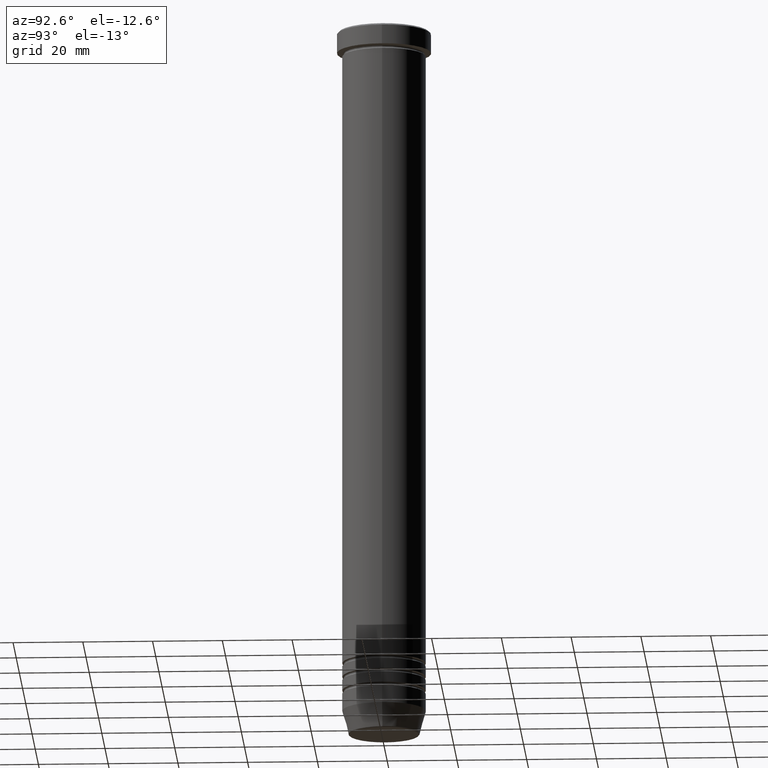
[diagram: clean part render]
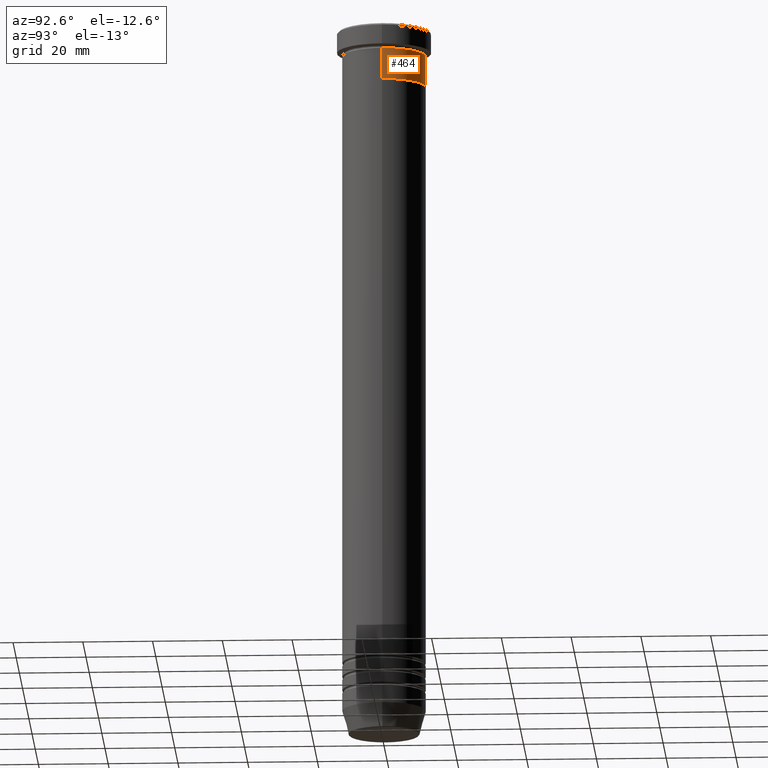
[diagram: same view with one face highlighted and labeled with its STEP entity id]
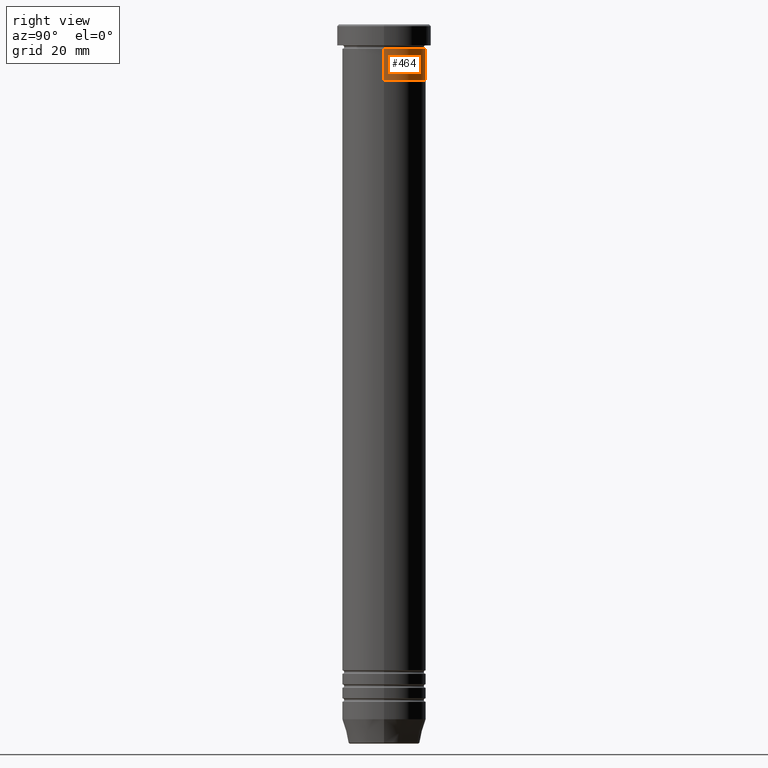
[diagram: same view with one face highlighted and labeled with its STEP entity id]
A machine part, auxiliary view. The second image highlights one B-rep face of the part: STEP entity #464.
A second angle (right view) of the same face is appended — the face is thin or edge-on in the first view.
In plain terms, the highlighted cylindrical surface (partial cylindrical patch) has radius 12 mm, axis along (-0, -0, 1).
Its self-contained STEP definition (entity closure, byte-faithful):
#11 = CARTESIAN_POINT ( 'NONE',  ( -12.00000000000000000, 1.469576158976823947E-15, -16.00000000000000000 ) ) ;
#36 = EDGE_CURVE ( 'NONE', #340, #129, #529, .T. ) ;
#67 = VECTOR ( 'NONE', #211, 1000.000000000000000 ) ;
#118 = DIRECTION ( 'NONE',  ( 1.000000000000000000, 0.000000000000000000, 0.000000000000000000 ) ) ;
#129 = VERTEX_POINT ( 'NONE', #11 ) ;
#131 = VERTEX_POINT ( 'NONE', #826 ) ;
#140 = LINE ( 'NONE', #831, #1123 ) ;
#147 = CIRCLE ( 'NONE', #379, 12.00000000000000000 ) ;
#173 = VERTEX_POINT ( 'NONE', #551 ) ;
#211 = DIRECTION ( 'NONE',  ( -0.000000000000000000, -0.000000000000000000, 1.000000000000000000 ) ) ;
#248 = EDGE_CURVE ( 'NONE', #131, #173, #147, .T. ) ;
#258 = ORIENTED_EDGE ( 'NONE', *, *, #322, .T. ) ;
#279 = DIRECTION ( 'NONE',  ( -0.000000000000000000, -0.000000000000000000, 1.000000000000000000 ) ) ;
#322 = EDGE_CURVE ( 'NONE', #129, #173, #140, .T. ) ;
#328 = AXIS2_PLACEMENT_3D ( 'NONE', #521, #1054, #496 ) ;
#340 = VERTEX_POINT ( 'NONE', #789 ) ;
#360 = CARTESIAN_POINT ( 'NONE',  ( 0.000000000000000000, 0.000000000000000000, 0.000000000000000000 ) ) ;
#370 = EDGE_LOOP ( 'NONE', ( #463, #258, #877, #586 ) ) ;
#379 = AXIS2_PLACEMENT_3D ( 'NONE', #837, #582, #118 ) ;
#403 = LINE ( 'NONE', #743, #67 ) ;
#463 = ORIENTED_EDGE ( 'NONE', *, *, #36, .T. ) ;
#464 = ADVANCED_FACE ( 'NONE', ( #710 ), #888, .T. ) ;
#496 = DIRECTION ( 'NONE',  ( 1.000000000000000000, 0.000000000000000000, 0.000000000000000000 ) ) ;
#505 = DIRECTION ( 'NONE',  ( -0.000000000000000000, -0.000000000000000000, 1.000000000000000000 ) ) ;
#521 = CARTESIAN_POINT ( 'NONE',  ( 0.000000000000000000, 0.000000000000000000, -16.00000000000000000 ) ) ;
#529 = CIRCLE ( 'NONE', #328, 12.00000000000000000 ) ;
#550 = AXIS2_PLACEMENT_3D ( 'NONE', #360, #279, #814 ) ;
#551 = CARTESIAN_POINT ( 'NONE',  ( -12.00000000000000000, 1.469576158976823947E-15, -6.999999999999999112 ) ) ;
#582 = DIRECTION ( 'NONE',  ( -0.000000000000000000, -0.000000000000000000, 1.000000000000000000 ) ) ;
#586 = ORIENTED_EDGE ( 'NONE', *, *, #616, .F. ) ;
#616 = EDGE_CURVE ( 'NONE', #340, #131, #403, .T. ) ;
#710 = FACE_OUTER_BOUND ( 'NONE', #370, .T. ) ;
#743 = CARTESIAN_POINT ( 'NONE',  ( 12.00000000000000000, 0.000000000000000000, 0.000000000000000000 ) ) ;
#789 = CARTESIAN_POINT ( 'NONE',  ( 12.00000000000000000, 0.000000000000000000, -16.00000000000000000 ) ) ;
#814 = DIRECTION ( 'NONE',  ( 1.000000000000000000, 0.000000000000000000, 0.000000000000000000 ) ) ;
#826 = CARTESIAN_POINT ( 'NONE',  ( 12.00000000000000000, 0.000000000000000000, -6.999999999999999112 ) ) ;
#831 = CARTESIAN_POINT ( 'NONE',  ( -12.00000000000000000, 1.469576158976823947E-15, 0.000000000000000000 ) ) ;
#837 = CARTESIAN_POINT ( 'NONE',  ( 0.000000000000000000, 0.000000000000000000, -6.999999999999999112 ) ) ;
#877 = ORIENTED_EDGE ( 'NONE', *, *, #248, .F. ) ;
#888 = CYLINDRICAL_SURFACE ( 'NONE', #550, 12.00000000000000000 ) ;
#1054 = DIRECTION ( 'NONE',  ( -0.000000000000000000, -0.000000000000000000, 1.000000000000000000 ) ) ;
#1123 = VECTOR ( 'NONE', #505, 1000.000000000000000 ) ;